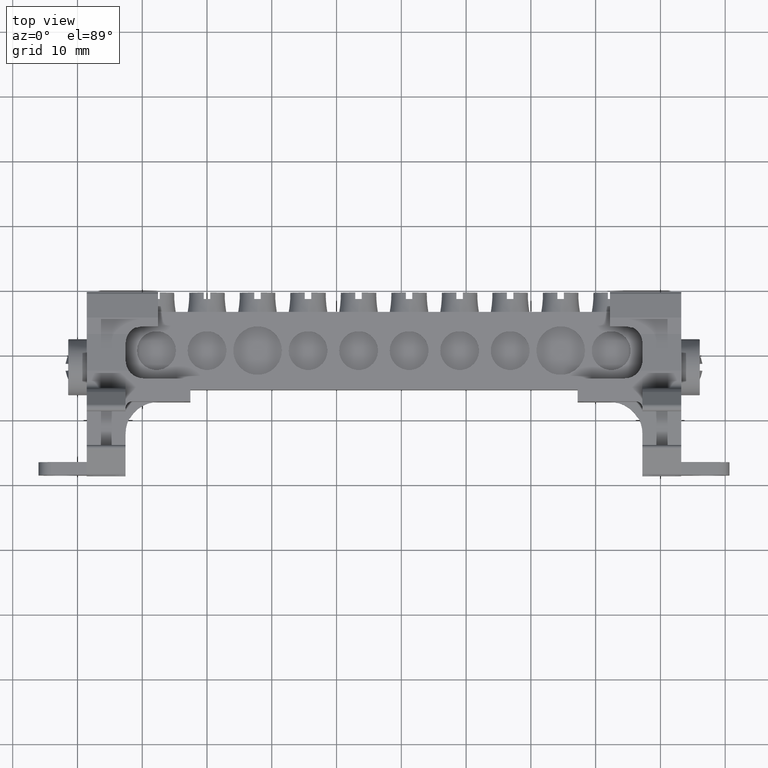
[diagram: clean part render]
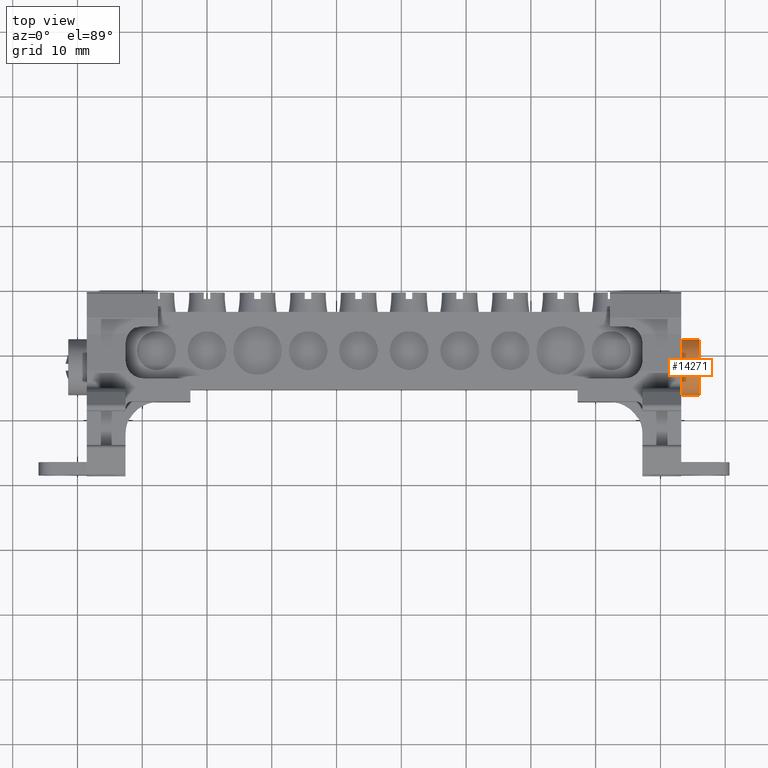
[diagram: same view with one face highlighted and labeled with its STEP entity id]
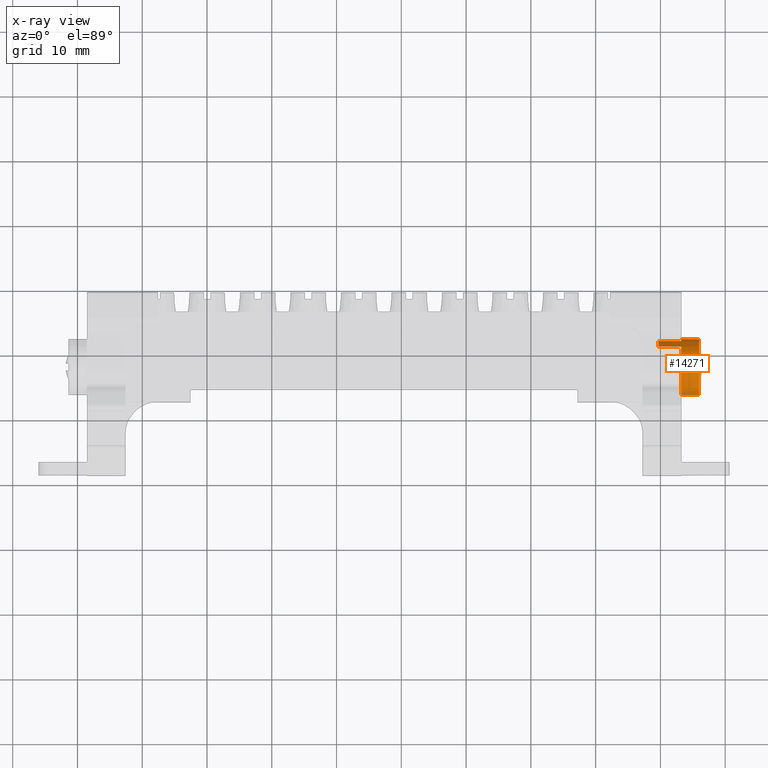
[diagram: x-ray of the same camera — body ghosted, the highlighted face saturated]
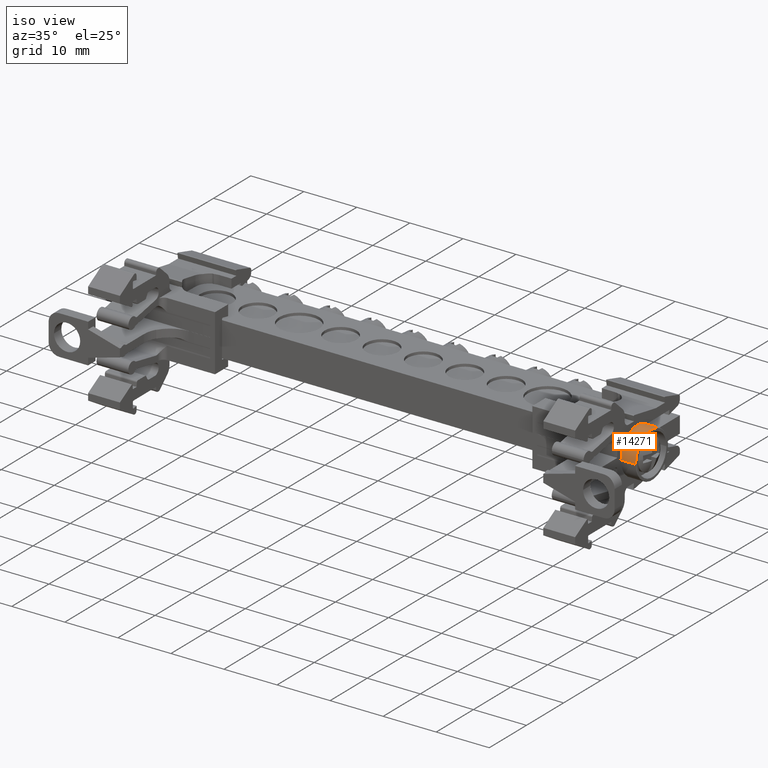
[diagram: same view with one face highlighted and labeled with its STEP entity id]
A machine part, top view. The second image highlights one B-rep face of the part: STEP entity #14271.
The next image is the same camera in x-ray: the body ghosted, the highlighted face saturated — about 0% of this face is hidden behind the body in this view.
A second angle (iso view) of the same face is appended — the face is thin or edge-on in the first view.
In plain terms, the highlighted cylindrical surface (edge-blend (fillet) strip) has radius 4.325 mm, axis along (-1, -0, -0).
Its self-contained STEP definition (entity closure, byte-faithful):
#188 = EDGE_CURVE ( 'NONE', #11782, #11805, #21650, .T. ) ;
#189 = EDGE_CURVE ( 'NONE', #11805, #11766, #16706, .T. ) ;
#190 = EDGE_CURVE ( 'NONE', #11779, #11684, #16710, .T. ) ;
#193 = EDGE_CURVE ( 'NONE', #11802, #11782, #16704, .T. ) ;
#198 = EDGE_CURVE ( 'NONE', #11765, #11779, #21693, .T. ) ;
#201 = EDGE_CURVE ( 'NONE', #11694, #11802, #21720, .T. ) ;
#230 = EDGE_CURVE ( 'NONE', #11765, #11694, #16752, .T. ) ;
#242 = EDGE_CURVE ( 'NONE', #11766, #11684, #21838, .T. ) ;
#809 = AXIS2_PLACEMENT_3D ( 'NONE', #12225, #12210, #12191 ) ;
#4033 = ORIENTED_EDGE ( 'NONE', *, *, #201, .T. ) ;
#4041 = ORIENTED_EDGE ( 'NONE', *, *, #193, .T. ) ;
#4042 = ORIENTED_EDGE ( 'NONE', *, *, #188, .T. ) ;
#4043 = ORIENTED_EDGE ( 'NONE', *, *, #190, .F. ) ;
#4051 = ORIENTED_EDGE ( 'NONE', *, *, #242, .T. ) ;
#4058 = ORIENTED_EDGE ( 'NONE', *, *, #198, .F. ) ;
#4060 = ORIENTED_EDGE ( 'NONE', *, *, #189, .T. ) ;
#4077 = ORIENTED_EDGE ( 'NONE', *, *, #230, .T. ) ;
#4551 = EDGE_LOOP ( 'NONE', ( #4077, #4033, #4041, #4042, #4060, #4051, #4043, #4058 ) ) ;
#11684 = VERTEX_POINT ( 'NONE', #13996 ) ;
#11694 = VERTEX_POINT ( 'NONE', #13992 ) ;
#11765 = VERTEX_POINT ( 'NONE', #14019 ) ;
#11766 = VERTEX_POINT ( 'NONE', #14032 ) ;
#11779 = VERTEX_POINT ( 'NONE', #14043 ) ;
#11782 = VERTEX_POINT ( 'NONE', #14038 ) ;
#11802 = VERTEX_POINT ( 'NONE', #14033 ) ;
#11805 = VERTEX_POINT ( 'NONE', #14094 ) ;
#12191 = DIRECTION ( 'NONE',  ( 1.123057972886700300E-014, -1.000000000000000000, 0.0000000000000000000 ) ) ;
#12206 = FACE_OUTER_BOUND ( 'NONE', #4551, .T. ) ;
#12210 = DIRECTION ( 'NONE',  ( -1.000000000000000000, -1.101172293446148100E-014, -2.403906012228000300E-015 ) ) ;
#12225 = CARTESIAN_POINT ( 'NONE',  ( -26.77539649368630500, -41.96391012922000400, 96.00723811290710300 ) ) ;
#12232 = CYLINDRICAL_SURFACE ( 'NONE', #809, 4.325000000000072100 ) ;
#13992 = CARTESIAN_POINT ( 'NONE',  ( -24.02539649368634800, -37.63891012921990900, 96.00723811290707500 ) ) ;
#13996 = CARTESIAN_POINT ( 'NONE',  ( -26.77539649368634800, -38.84917671809527900, 99.00791483285279100 ) ) ;
#14019 = CARTESIAN_POINT ( 'NONE',  ( -24.02539649368624800, -46.28891012922007100, 96.00723811290707500 ) ) ;
#14032 = CARTESIAN_POINT ( 'NONE',  ( -30.30539649368637400, -38.84917672684895300, 99.00791484193912600 ) ) ;
#14033 = CARTESIAN_POINT ( 'NONE',  ( -26.77539649368634400, -37.63891012921993000, 96.00723811290708900 ) ) ;
#14038 = CARTESIAN_POINT ( 'NONE',  ( -26.77539649368632600, -37.94242243240280700, 97.59886050276217900 ) ) ;
#14043 = CARTESIAN_POINT ( 'NONE',  ( -26.77539649368625900, -46.28891012922007800, 96.00723811290708900 ) ) ;
#14094 = CARTESIAN_POINT ( 'NONE',  ( -30.30539649368639100, -37.94242243240283600, 97.59886050276216500 ) ) ;
#14271 = ADVANCED_FACE ( 'NONE', ( #12206 ), #12232, .T. ) ;
#16698 = VECTOR ( 'NONE', #21712, 1000.000000000000000 ) ;
#16704 = CIRCLE ( 'NONE', #16716, 4.325000000000072100 ) ;
#16706 = CIRCLE ( 'NONE', #16722, 4.325000000000072100 ) ;
#16710 = CIRCLE ( 'NONE', #16712, 4.325000000000072100 ) ;
#16712 = AXIS2_PLACEMENT_3D ( 'NONE', #21643, #21651, #21664 ) ;
#16716 = AXIS2_PLACEMENT_3D ( 'NONE', #21662, #21677, #21659 ) ;
#16722 = AXIS2_PLACEMENT_3D ( 'NONE', #21681, #21656, #21682 ) ;
#16728 = VECTOR ( 'NONE', #21667, 1000.000000000000000 ) ;
#16738 = VECTOR ( 'NONE', #21715, 1000.000000000000000 ) ;
#16752 = CIRCLE ( 'NONE', #16804, 4.325000000000072100 ) ;
#16774 = VECTOR ( 'NONE', #21817, 1000.000000000000000 ) ;
#16804 = AXIS2_PLACEMENT_3D ( 'NONE', #21778, #21786, #21783 ) ;
#21643 = CARTESIAN_POINT ( 'NONE',  ( -26.77539649368630800, -41.96391012922000400, 96.00723811290710300 ) ) ;
#21649 = CARTESIAN_POINT ( 'NONE',  ( 10.65360525592736500, -37.94242241545194400, 97.59886050000011400 ) ) ;
#21650 = LINE ( 'NONE', #21649, #16728 ) ;
#21651 = DIRECTION ( 'NONE',  ( -1.000000000000000000, -1.101172293446148100E-014, -2.403906012228000300E-015 ) ) ;
#21656 = DIRECTION ( 'NONE',  ( 1.000000000000000000, 1.101172293446148100E-014, 2.403906012228000300E-015 ) ) ;
#21659 = DIRECTION ( 'NONE',  ( 1.123057972886700300E-014, -1.000000000000000000, 3.208737065390572400E-015 ) ) ;
#21662 = CARTESIAN_POINT ( 'NONE',  ( -26.77539649368629800, -41.96391012922000400, 96.00723811290710300 ) ) ;
#21664 = DIRECTION ( 'NONE',  ( 1.123057972886700300E-014, -1.000000000000000000, 0.0000000000000000000 ) ) ;
#21667 = DIRECTION ( 'NONE',  ( -1.000000000000000000, -1.100161628464490100E-014, -2.364590298907920300E-015 ) ) ;
#21677 = DIRECTION ( 'NONE',  ( 1.000000000000000000, 1.101172293446148100E-014, 2.403906012228000300E-015 ) ) ;
#21681 = CARTESIAN_POINT ( 'NONE',  ( -30.30539649368634900, -41.96391012922004600, 96.00723811290708900 ) ) ;
#21682 = DIRECTION ( 'NONE',  ( 1.123057972886700300E-014, -1.000000000000000000, 0.0000000000000000000 ) ) ;
#21690 = CARTESIAN_POINT ( 'NONE',  ( -26.77539649368625500, -46.28891012922007800, 96.00723811290710300 ) ) ;
#21693 = LINE ( 'NONE', #21690, #16698 ) ;
#21709 = CARTESIAN_POINT ( 'NONE',  ( -26.77539649368635100, -37.63891012921993000, 96.00723811290710300 ) ) ;
#21712 = DIRECTION ( 'NONE',  ( -1.000000000000000000, -1.101172293446148100E-014, -2.403906012228000300E-015 ) ) ;
#21715 = DIRECTION ( 'NONE',  ( -1.000000000000000000, -1.101172293446148100E-014, -2.403906012228000300E-015 ) ) ;
#21720 = LINE ( 'NONE', #21709, #16738 ) ;
#21778 = CARTESIAN_POINT ( 'NONE',  ( -24.02539649368629800, -41.96391012921997500, 96.00723811290710300 ) ) ;
#21783 = DIRECTION ( 'NONE',  ( 1.123057972886700300E-014, -1.000000000000000000, 0.0000000000000000000 ) ) ;
#21786 = DIRECTION ( 'NONE',  ( -1.000000000000000000, -1.101172293446148100E-014, -2.403906012228000300E-015 ) ) ;
#21816 = CARTESIAN_POINT ( 'NONE',  ( -26.77539649368634400, -38.84917672684891000, 99.00791484193914000 ) ) ;
#21817 = DIRECTION ( 'NONE',  ( 1.000000000000000000, 1.101172293446148100E-014, 2.403906012228000300E-015 ) ) ;
#21838 = LINE ( 'NONE', #21816, #16774 ) ;